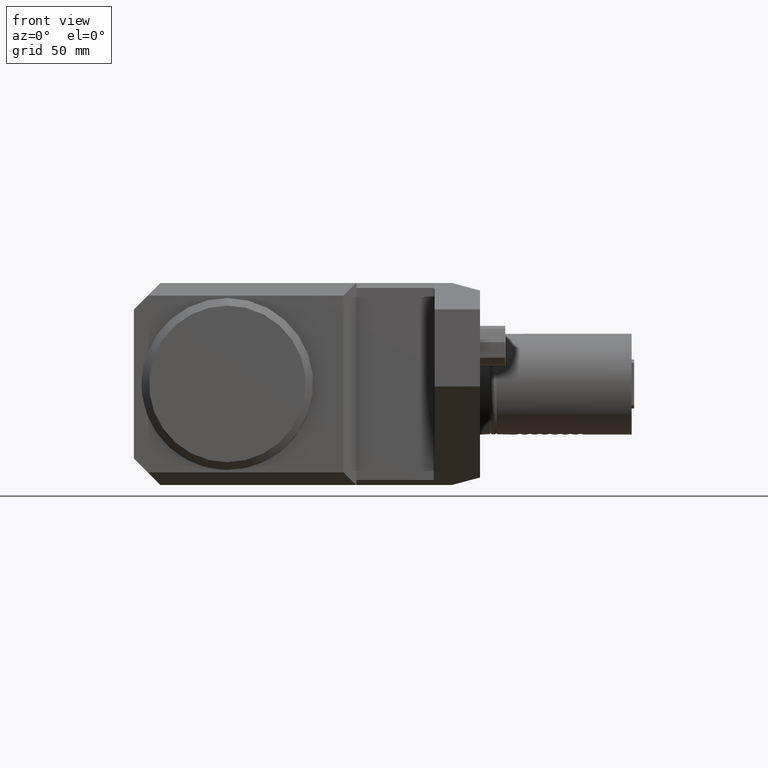
[diagram: clean part render]
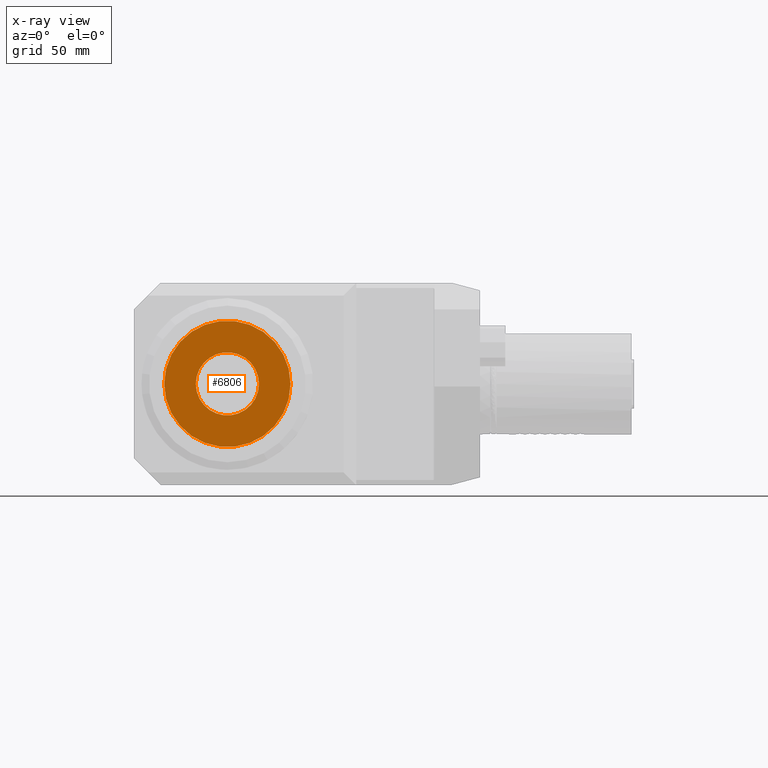
[diagram: x-ray — body ghosted, one internal face saturated and labeled with its STEP entity id]
A machine part, front view, then the same camera in x-ray: the body is ghosted and one INTERNAL B-rep face — a face not visible from any outside direction — is saturated and labeled: STEP entity #6806.
In plain terms, the highlighted planar face has unit normal (-0, 1, 0).
Its self-contained STEP definition (entity closure, byte-faithful):
#1597=PLANE('',#7444);
#3523=ORIENTED_EDGE('',*,*,#4493,.F.);
#3524=ORIENTED_EDGE('',*,*,#4494,.T.);
#4493=EDGE_CURVE('',#5152,#5152,#5363,.T.);
#4494=EDGE_CURVE('',#5153,#5153,#5364,.T.);
#5152=VERTEX_POINT('',#12120);
#5153=VERTEX_POINT('',#12122);
#5363=CIRCLE('',#7445,12.5);
#5364=CIRCLE('',#7446,25.);
#5825=EDGE_LOOP('',(#3523));
#5826=EDGE_LOOP('',(#3524));
#6292=FACE_BOUND('',#5825,.T.);
#6293=FACE_BOUND('',#5826,.T.);
#6806=ADVANCED_FACE('',(#6292,#6293),#1597,.T.);
#7444=AXIS2_PLACEMENT_3D('',#12118,#9250,#9251);
#7445=AXIS2_PLACEMENT_3D('',#12119,#9252,#9253);
#7446=AXIS2_PLACEMENT_3D('',#12121,#9254,#9255);
#9250=DIRECTION('',(-3.79079641973877E-16,1.,1.95937855870841E-16));
#9251=DIRECTION('',(6.01244314751836E-16,1.95937855870841E-16,-1.));
#9252=DIRECTION('',(-3.79079641973877E-16,1.,1.95937855870841E-16));
#9253=DIRECTION('',(-1.,-3.79079641973877E-16,0.));
#9254=DIRECTION('',(-3.79079641973877E-16,1.,1.95937855870841E-16));
#9255=DIRECTION('',(-1.,-3.79079641973877E-16,0.));
#12118=CARTESIAN_POINT('',(-100.,-41.,-33.7967949192431));
#12119=CARTESIAN_POINT('',(-100.,-41.,0.0299999999999493));
#12120=CARTESIAN_POINT('',(-112.5,-41.,0.0299999999999493));
#12121=CARTESIAN_POINT('',(-100.,-41.,0.0299999999999775));
#12122=CARTESIAN_POINT('',(-125.,-41.,0.0299999999999775));